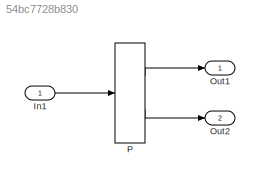
MODEL slx_54bc7728b830
KIND model
CONFIG AbsTol = auto
CONFIG EnableMultiTasking = off
CONFIG FixedStep = auto
CONFIG MaxStep = auto
CONFIG MinStep = auto
CONFIG RelTol = 1e-3
CONFIG SampleTimeConstraint = Unconstrained
CONFIG Solver = FixedStepDiscrete
CONFIG SolverName = FixedStepDiscrete
CONFIG StartTime = 0.0
CONFIG StopTime = 10.0
BLOCK [Inport] In1
  IconDisplay = Port number
  OutDataTypeStr = double
  PortDimensions = 1
BLOCK [Outport] Out1
  IconDisplay = Port number
BLOCK [Outport] Out2
  IconDisplay = Port number
  Port = 2
BLOCK [PreLookup] P
  BreakpointsData = [10:10:110]
  BreakpointsFirstPoint = 16
  BreakpointsNumPoints = 28
  BreakpointsSpacing = 3
  BreakpointsSpecification = Even spacing
  FractionDataTypeStr = double
  IndexDataTypeStr = int8
  IndexSearchMethod = Evenly spaced points
  InputPortMap = u0
  Ports = [1, 2]
LINE In1:1 -> P:1
LINE P:1 -> Out1:1
LINE P:2 -> Out2:1
